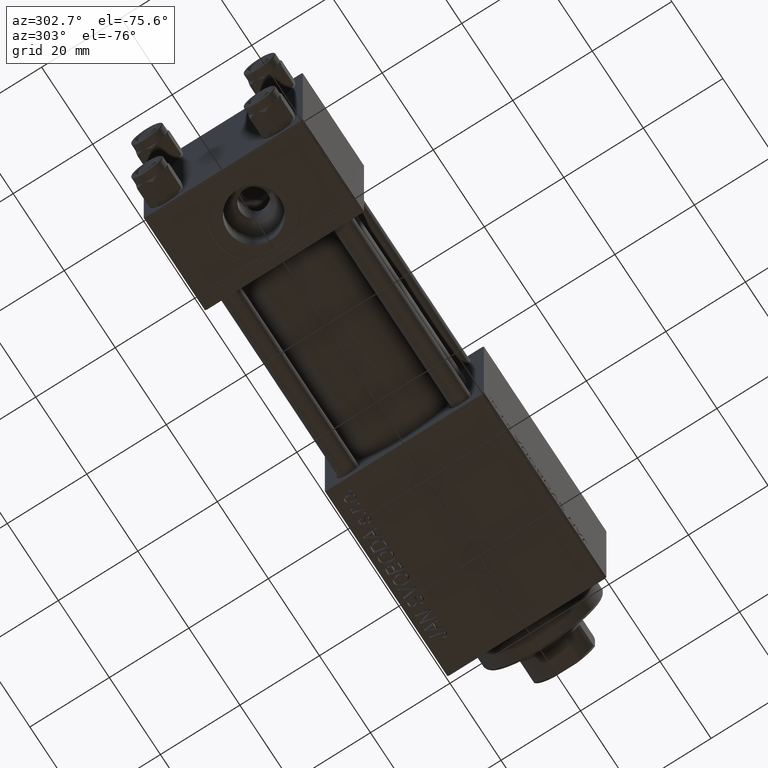
[diagram: clean part render]
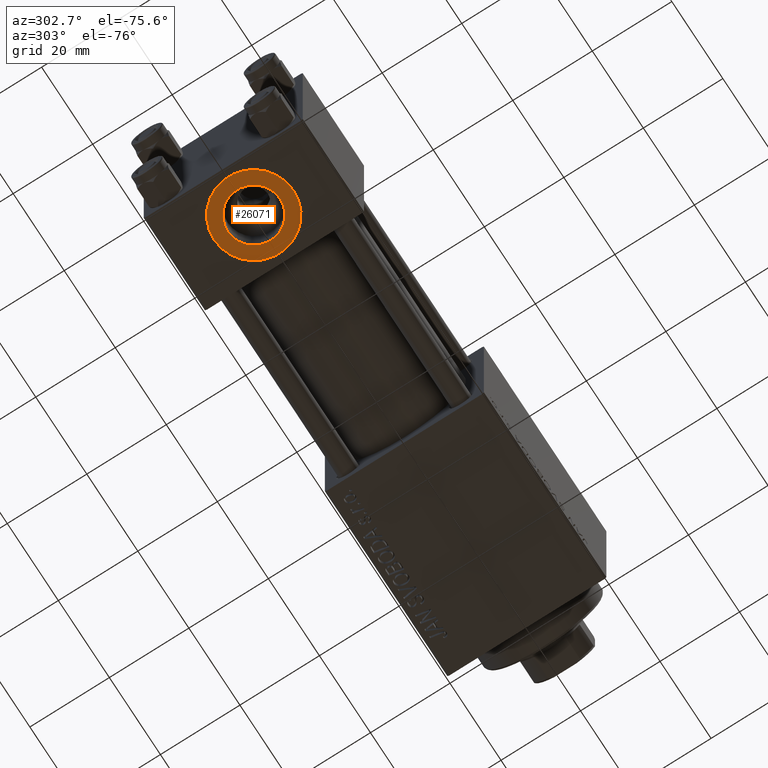
[diagram: same view with one face highlighted and labeled with its STEP entity id]
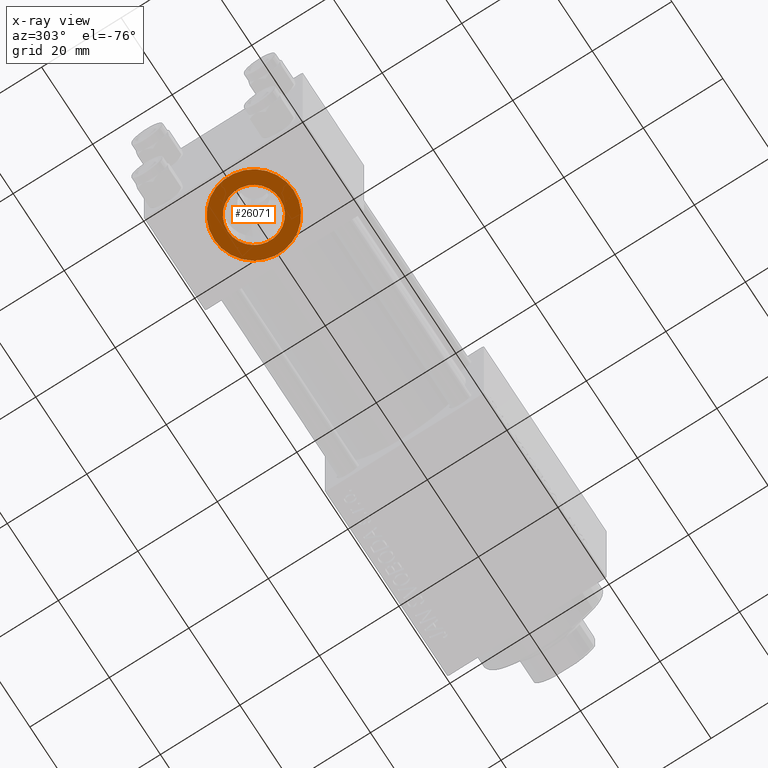
[diagram: x-ray of the same camera — body ghosted, the highlighted face saturated]
A machine part, auxiliary view. The second image highlights one B-rep face of the part: STEP entity #26071.
The next image is the same camera in x-ray: the body ghosted, the highlighted face saturated — about 0% of this face is hidden behind the body in this view.
In plain terms, the highlighted planar face has unit normal (0, -0, -1).
Its self-contained STEP definition (entity closure, byte-faithful):
#1342 = CIRCLE ( 'NONE', #24832, 6.580000000000000071 ) ;
#2773 = AXIS2_PLACEMENT_3D ( 'NONE', #3741, #26647, #42633 ) ;
#3741 = CARTESIAN_POINT ( 'NONE',  ( 12.00000000000000000, -4.904328641410901403E-15, -19.80000000000000426 ) ) ;
#7155 = CARTESIAN_POINT ( 'NONE',  ( 12.00000000000000000, 9.999999999999996447, -19.80000000000000426 ) ) ;
#7563 = DIRECTION ( 'NONE',  ( 0.000000000000000000, 1.000000000000000000, 0.000000000000000000 ) ) ;
#7633 = EDGE_LOOP ( 'NONE', ( #12739, #17404 ) ) ;
#9483 = FACE_BOUND ( 'NONE', #7633, .T. ) ;
#12739 = ORIENTED_EDGE ( 'NONE', *, *, #49852, .F. ) ;
#12882 = CIRCLE ( 'NONE', #2773, 10.00000000000000178 ) ;
#15724 = CARTESIAN_POINT ( 'NONE',  ( 12.00000000000000000, -4.904328641410902191E-15, -19.80000000000000426 ) ) ;
#16182 = DIRECTION ( 'NONE',  ( 0.000000000000000000, 1.000000000000000000, 0.000000000000000000 ) ) ;
#17383 = CARTESIAN_POINT ( 'NONE',  ( 12.00000000000000000, -4.904328641410901403E-15, -19.80000000000000426 ) ) ;
#17404 = ORIENTED_EDGE ( 'NONE', *, *, #34588, .F. ) ;
#18641 = AXIS2_PLACEMENT_3D ( 'NONE', #28092, #51713, #23891 ) ;
#20385 = DIRECTION ( 'NONE',  ( 0.000000000000000000, -1.734723475976806848E-16, -1.000000000000000000 ) ) ;
#21919 = CIRCLE ( 'NONE', #41178, 6.580000000000000071 ) ;
#23891 = DIRECTION ( 'NONE',  ( 0.000000000000000000, 1.000000000000000000, 0.000000000000000000 ) ) ;
#24832 = AXIS2_PLACEMENT_3D ( 'NONE', #48192, #20385, #16182 ) ;
#24991 = DIRECTION ( 'NONE',  ( 0.000000000000000000, 1.000000000000000000, -1.734723475976806848E-16 ) ) ;
#25515 = DIRECTION ( 'NONE',  ( 0.000000000000000000, -1.734723475976806848E-16, -1.000000000000000000 ) ) ;
#26071 = ADVANCED_FACE ( 'NONE', ( #9483, #33643 ), #48599, .T. ) ;
#26642 = VERTEX_POINT ( 'NONE', #30628 ) ;
#26647 = DIRECTION ( 'NONE',  ( 0.000000000000000000, -1.734723475976806848E-16, -1.000000000000000000 ) ) ;
#28092 = CARTESIAN_POINT ( 'NONE',  ( 12.00000000000000000, -4.904328641410901403E-15, -19.80000000000000426 ) ) ;
#29019 = AXIS2_PLACEMENT_3D ( 'NONE', #17383, #25515, #24991 ) ;
#30628 = CARTESIAN_POINT ( 'NONE',  ( 12.00000000000000178, -10.00000000000000711, -19.80000000000000426 ) ) ;
#31567 = VERTEX_POINT ( 'NONE', #7155 ) ;
#32250 = DIRECTION ( 'NONE',  ( 0.000000000000000000, -1.734723475976806848E-16, -1.000000000000000000 ) ) ;
#33643 = FACE_OUTER_BOUND ( 'NONE', #34800, .T. ) ;
#33903 = VERTEX_POINT ( 'NONE', #35542 ) ;
#34588 = EDGE_CURVE ( 'NONE', #33903, #39042, #21919, .T. ) ;
#34800 = EDGE_LOOP ( 'NONE', ( #51104, #41482 ) ) ;
#35542 = CARTESIAN_POINT ( 'NONE',  ( 12.00000000000000000, -6.580000000000006288, -19.80000000000000426 ) ) ;
#36233 = CIRCLE ( 'NONE', #18641, 10.00000000000000178 ) ;
#36679 = EDGE_CURVE ( 'NONE', #26642, #31567, #36233, .T. ) ;
#39042 = VERTEX_POINT ( 'NONE', #46673 ) ;
#41178 = AXIS2_PLACEMENT_3D ( 'NONE', #15724, #32250, #7563 ) ;
#41482 = ORIENTED_EDGE ( 'NONE', *, *, #36679, .T. ) ;
#42633 = DIRECTION ( 'NONE',  ( 0.000000000000000000, 1.000000000000000000, 0.000000000000000000 ) ) ;
#43508 = EDGE_CURVE ( 'NONE', #31567, #26642, #12882, .T. ) ;
#46673 = CARTESIAN_POINT ( 'NONE',  ( 12.00000000000000000, 6.579999999999994742, -19.80000000000000426 ) ) ;
#48192 = CARTESIAN_POINT ( 'NONE',  ( 12.00000000000000000, -4.904328641410902191E-15, -19.80000000000000426 ) ) ;
#48599 = PLANE ( 'NONE',  #29019 ) ;
#49852 = EDGE_CURVE ( 'NONE', #39042, #33903, #1342, .T. ) ;
#51104 = ORIENTED_EDGE ( 'NONE', *, *, #43508, .T. ) ;
#51713 = DIRECTION ( 'NONE',  ( 0.000000000000000000, -1.734723475976806848E-16, -1.000000000000000000 ) ) ;